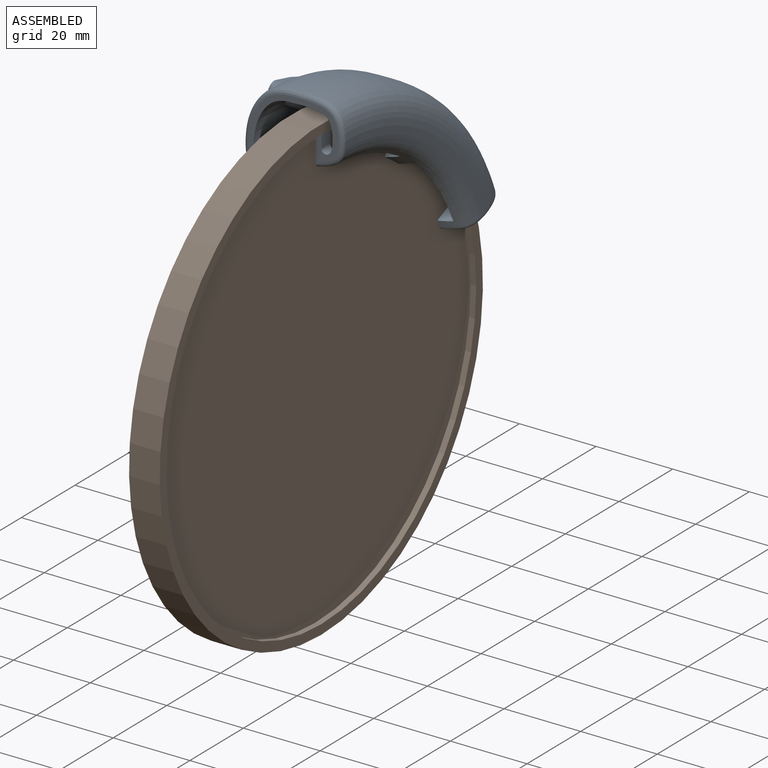
[diagram: assembled view]
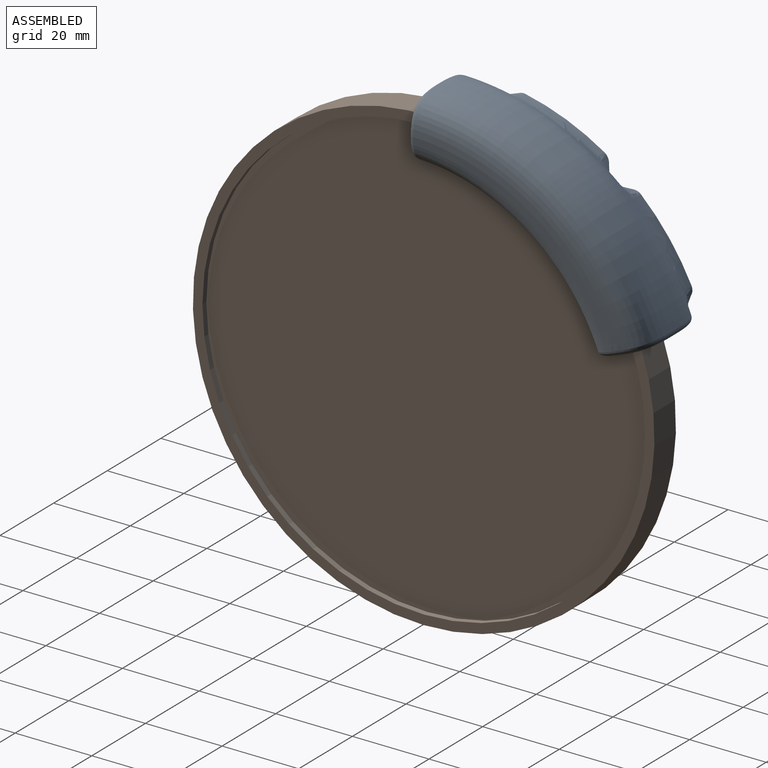
[diagram: assembled view, second angle]
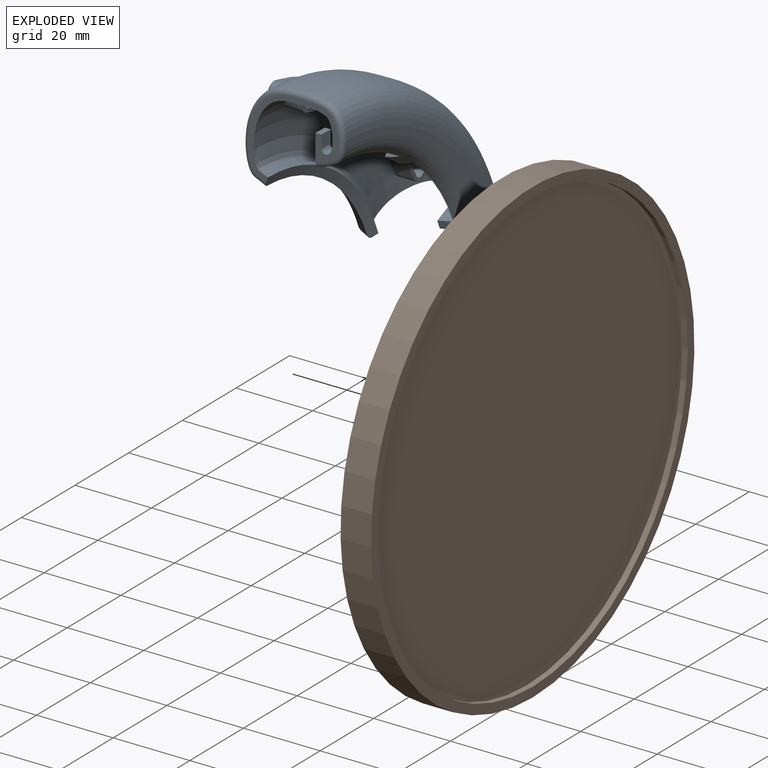
[diagram: exploded view]
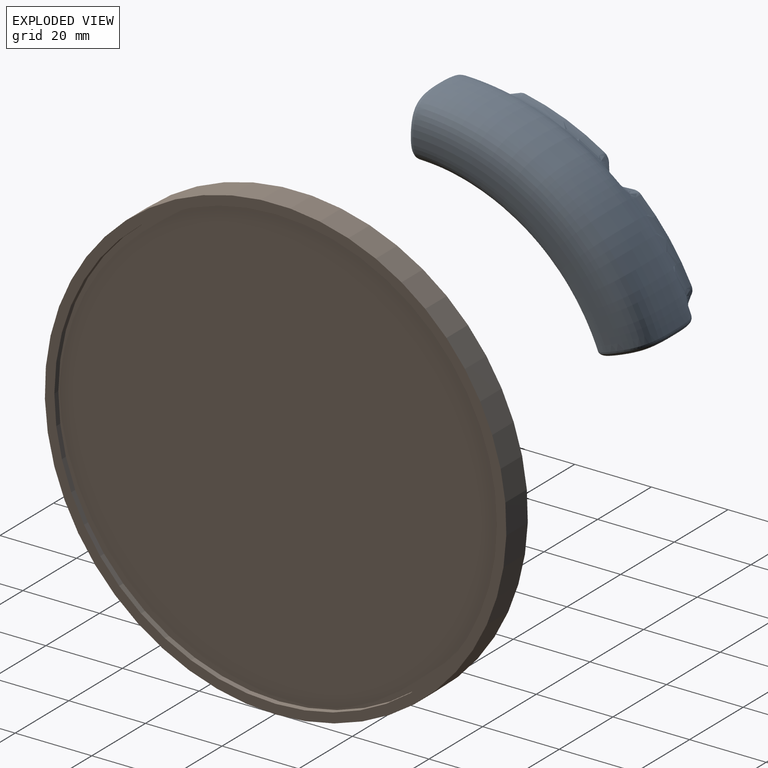
[diagram: exploded view, second angle]
ASSEMBLY  parts=2 mates=2
PART A: 65 faces, bbox 31x63.7x53.6 mm
  f0: plane 24.83x12.93mm, normal (1,0,0), area 55.5mm2, adj f29,f30,f31,f32,f47,f48,f49,f50
  f1: plane 26.43x14.53mm, normal (-1,0,0), area 55.5mm2, adj f33,f34,f35,f47,f48,f49,f50,f53
  f2: plane 22.23x17.63mm, normal (1,0,0), area 55.5mm2, adj f36,f37,f38,f39,f43,f44,f45,f46
  f3: plane 23.82x19.23mm, normal (-1,0,0), area 55.5mm2, adj f40,f41,f42,f43,f44,f45,f46,f56
  f4: revolved ~60.85x51.17mm, area 3515.6mm2, adj f8,f9,f14,f15,f18,f19,f20,f21
  f5: revolved ~59.51x48.32mm, area 2830.7mm2, adj f12,f13,f14,f18,f19,f20,f21,f22
  f6: cylinder r=57.75mm len=5.78mm, axis (-1,0,0), area 10.6mm2, adj f8,f10,f19,f22
  f7: cylinder r=57.75mm len=3.53mm, axis (-1,0,0), area 5.3mm2, adj f9,f11,f13,f20
  f8: plane 10.52x10.1mm, normal (-1,0,0), area 54.2mm2, adj f4,f6,f19,f22
  f9: plane 8.49x3.64mm, normal (-1,0,0), area 26.8mm2, adj f4,f7,f13,f20,f27
  f10: plane 7.45x6.55mm, normal (1,0,0), area 22mm2, adj f6,f19,f22,f25
  f11: plane 3.53x3.31mm, normal (1,0,0), area 11mm2, adj f7,f13,f20,f26
  f12: plane 23.62x21.04mm, normal (0,0.34,-0.94), area 89.1mm2, adj f5,f14,f15,f16,f17,f24,f28
  f13: plane 23.61x22.38mm, normal (0,-1,0), area 89mm2, adj f5,f7,f9,f11,f14,f26,f27
  f14: cone r=17.75mm half-angle=70deg, axis (1,0,0), area 140.9mm2, adj f4,f5,f12,f13,f27,f28
  f15: plane 9.02x5.89mm, normal (-1,0,0), area 26.8mm2, adj f4,f12,f16,f23,f28
  f16: cylinder r=57.75mm len=3.28mm, axis (-1,0,0), area 5.3mm2, adj f12,f15,f17,f23
  f17: plane 4.37x4.24mm, normal (1,0,0), area 11mm2, adj f12,f16,f23,f24
  f18: plane 24.95x10.46mm, normal (-1,0,0), area 79.2mm2, adj f4,f5,f19,f20
  f19: plane 7.08x4.35mm, normal (0,-0.85,0.52), area 18.9mm2, adj f4,f5,f6,f8,f10,f18,f25
  f20: plane 8.29x3.55mm, normal (0,1,-0.06), area 18.9mm2, adj f4,f5,f7,f9,f11,f18,f26
  f21: plane 21.84x17.74mm, normal (-1,0,0), area 79.2mm2, adj f4,f5,f22,f23
  f22: plane 6.5x5.18mm, normal (0,0.78,-0.62), area 18.9mm2, adj f4,f5,f6,f8,f10,f21,f25
  f23: plane 7.62x3.55mm, normal (0,-0.4,0.92), area 18.9mm2, adj f4,f5,f15,f16,f17,f21,f24
  f24: torus R=54.55mm, axis (-1,0,0), area 8.9mm2, adj f5,f12,f17,f23
  f25: torus R=54.55mm, axis (-1,0,0), area 17.9mm2, adj f5,f10,f19,f22
  f26: torus R=54.55mm, axis (-1,0,0), area 8.9mm2, adj f5,f11,f13,f20
  f27: bspline ~26.01x24.89mm, area 117.7mm2, adj f4,f9,f13,f14
  f28: bspline ~26.02x23.84mm, area 117.7mm2, adj f4,f12,f14,f15,f59
  f29: cylinder r=61.71mm len=20.65mm, axis (1,0,0), area 35.3mm2, adj f0,f5,f30,f32
  f30: cylinder r=2.51mm len=5.08mm, axis (1,0,0), area 26.3mm2, adj f0,f5,f29,f31
  f31: cylinder r=56.68mm len=18.97mm, axis (1,0,0), area 104.4mm2, adj f0,f5,f30,f32
  f32: cylinder r=2.51mm len=5.08mm, axis (1,0,0), area 26.3mm2, adj f0,f5,f29,f31
  f33: cylinder r=2.51mm len=1.32mm, axis (1,0,0), area 0.7mm2, adj f1,f35,f51
  f34: cylinder r=2.51mm len=1.05mm, axis (1,0,0), area 0.7mm2, adj f1,f35,f54
  f35: cylinder r=61.71mm len=20.65mm, axis (1,0,0), area 23.4mm2, adj f1,f33,f34,f52
  f36: cylinder r=2.51mm len=5.08mm, axis (1,0,0), area 26.3mm2, adj f2,f5,f37,f39
  f37: cylinder r=56.68mm len=16.47mm, axis (1,0,0), area 104.4mm2, adj f2,f5,f36,f38
  f38: cylinder r=2.51mm len=5.08mm, axis (1,0,0), area 26.3mm2, adj f2,f5,f37,f39
  f39: cylinder r=61.71mm len=17.93mm, axis (1,0,0), area 35.3mm2, adj f2,f5,f36,f38
  f40: cylinder r=61.71mm len=17.93mm, axis (1,0,0), area 23.4mm2, adj f3,f41,f42,f64
  f41: cylinder r=2.51mm len=1.17mm, axis (1,0,0), area 0.7mm2, adj f3,f40,f62
  f42: cylinder r=2.51mm len=1.3mm, axis (1,0,0), area 0.7mm2, adj f3,f40,f63
  f43: cylinder r=1.51mm len=9mm, axis (-1,0,0), area 42.7mm2, adj f2,f3,f44,f45
  f44: cylinder r=57.68mm len=16.76mm, axis (-1,0,0), area 188.1mm2, adj f2,f3,f43,f46
  f45: cylinder r=60.71mm len=17.64mm, axis (-1,0,0), area 198mm2, adj f2,f3,f43,f46
  f46: cylinder r=1.51mm len=9mm, axis (-1,0,0), area 42.7mm2, adj f2,f3,f44,f45
  f47: cylinder r=60.71mm len=20.32mm, axis (-1,0,0), area 198mm2, adj f0,f1,f48,f49
  f48: cylinder r=1.51mm len=9mm, axis (-1,0,0), area 42.7mm2, adj f0,f1,f47,f50
  f49: cylinder r=1.51mm len=9mm, axis (-1,0,0), area 42.7mm2, adj f0,f1,f47,f50
  f50: cylinder r=57.68mm len=19.3mm, axis (-1,0,0), area 188.1mm2, adj f0,f1,f48,f49
  f51: bspline ~5.24x4.7mm, area 13.5mm2, adj f4,f33,f52,f53
  f52: torus R=67.71mm, axis (-1,0,0), area 100.1mm2, adj f4,f35,f51,f54
  f53: bspline ~9.71x6.66mm, area 44.7mm2, adj f1,f4,f51,f55
  f54: bspline ~5.35x4.17mm, area 13.5mm2, adj f4,f34,f52,f57
  f55: torus R=54.48mm, axis (1,0,0), area 62.1mm2, adj f1,f4,f53,f57
  f56: bspline ~5.44x5.36mm, area 11.8mm2, adj f3,f4,f58,f59
  f57: bspline ~9.51x7.55mm, area 44.7mm2, adj f1,f4,f54,f55,f60
  f58: torus R=54.48mm, axis (1,0,0), area 62.1mm2, adj f3,f4,f56,f60
  f59: bspline ~7.53x5.73mm, area 19.9mm2, adj f3,f28,f56,f61
  f60: bspline ~9.89x7.3mm, area 44.7mm2, adj f3,f4,f57,f58,f62
  f61: bspline ~4.73x4.26mm, area 4.3mm2, adj f3,f4,f59,f63
  f62: bspline ~5.24x4mm, area 13.5mm2, adj f4,f41,f60,f64
  f63: bspline ~5.35x4.79mm, area 13.5mm2, adj f4,f42,f61,f64
  f64: torus R=67.71mm, axis (-1,0,0), area 100.1mm2, adj f4,f40,f62,f63
PART B: 6 faces, bbox 23.5x120.5x120.5 mm
  f0: cone r=17.75mm half-angle=70deg, axis (1,0,0), area 11085.4mm2, adj f1,f5
  f1: plane 35.5x35.5mm, normal (-1,0,0), area 989.8mm2, adj f0
  f2: plane 115.5x115.5mm, normal (1,0,0), area 10477.4mm2, adj f3
  f3: cylinder r=57.75mm len=115.5mm, axis (1,0,0), area 544.3mm2, adj f2,f4
  f4: plane 120.5x120.5mm, normal (1,0,0), area 926.8mm2, adj f3,f5
  f5: cylinder r=60.25mm len=120.5mm, axis (1,0,0), area 3028.5mm2, adj f0,f4
PLACE A t=(-11.65,3.52,70.98)mm
PLACE B t=(-11.65,3.52,70.98)mm
MATE parallel B.f0 <-> A.f9  axis (1,0,0) through (-11.65,3.52,70.98)mm
MATE parallel A.f6 <-> B.f0  axis (-1,0,0) through (-10.9,3.52,70.98)mm
